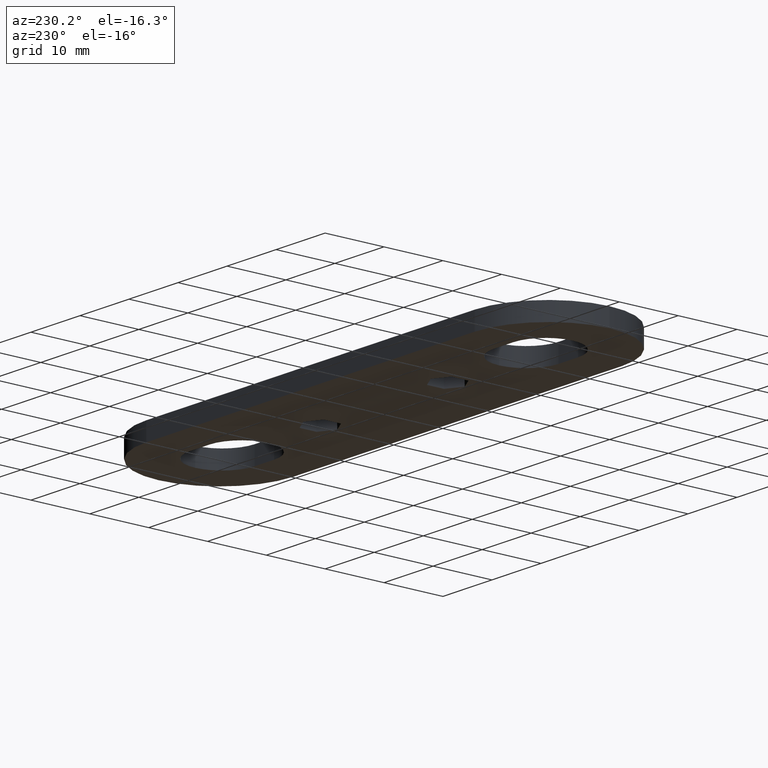
[diagram: clean part render]
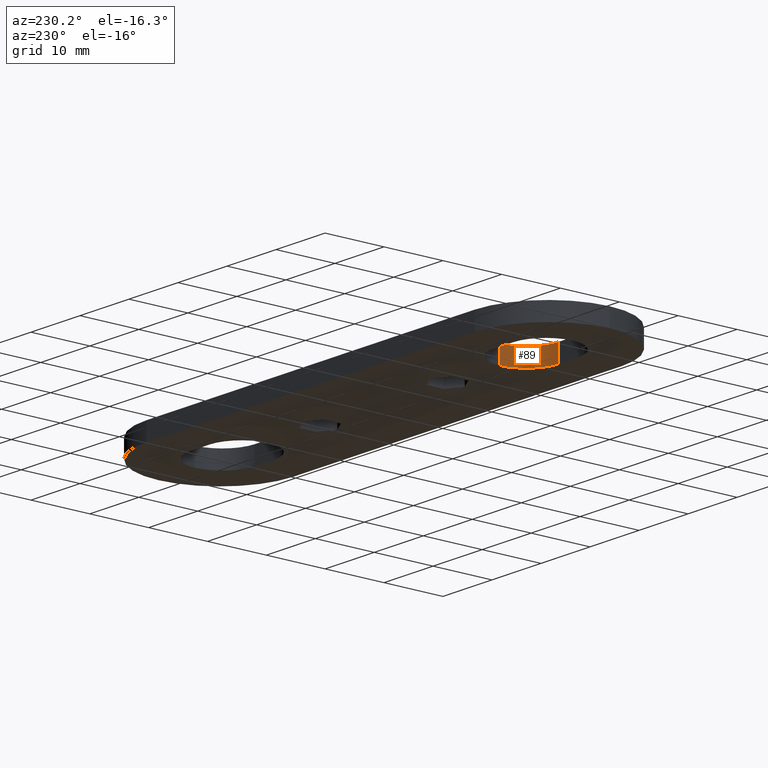
[diagram: same view with one face highlighted and labeled with its STEP entity id]
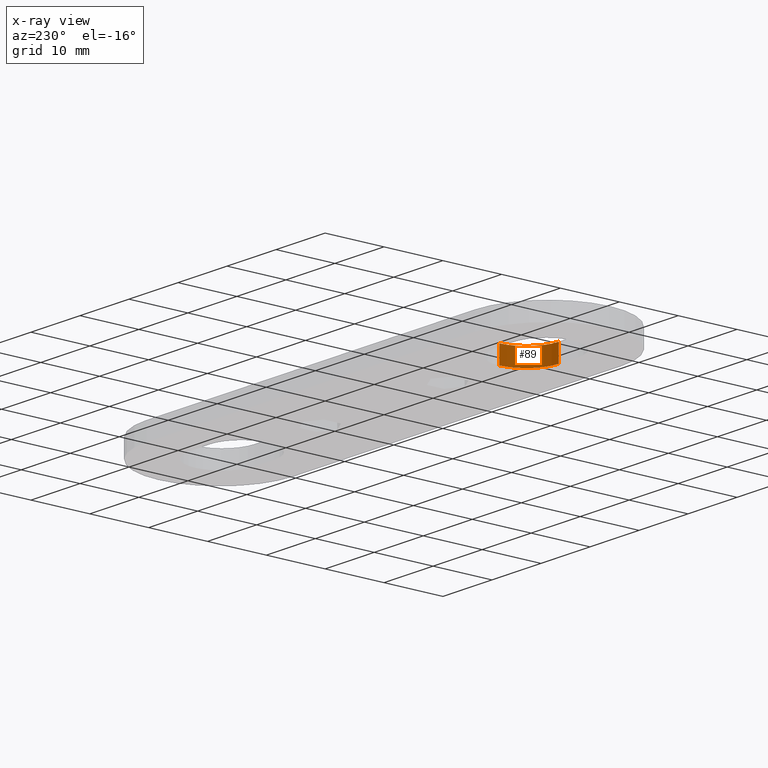
[diagram: x-ray of the same camera — body ghosted, the highlighted face saturated]
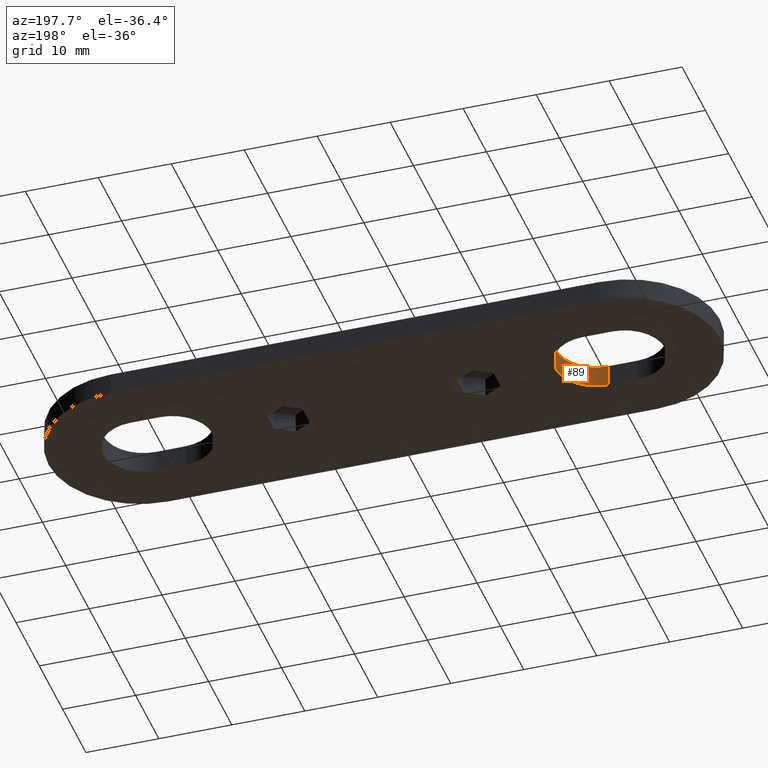
[diagram: same view with one face highlighted and labeled with its STEP entity id]
A machine part, auxiliary view. The second image highlights one B-rep face of the part: STEP entity #89.
The next image is the same camera in x-ray: the body ghosted, the highlighted face saturated — about 0% of this face is hidden behind the body in this view.
A second angle (auxiliary view) of the same face is appended — the face is thin or edge-on in the first view.
In plain terms, the highlighted cylindrical surface (partial cylindrical patch) has radius 5.5 mm, axis along (0, -0, -1).
Its self-contained STEP definition (entity closure, byte-faithful):
#89 = ADVANCED_FACE( '', ( #188 ), #189, .F. );
#188 = FACE_OUTER_BOUND( '', #345, .T. );
#189 = CYLINDRICAL_SURFACE( '', #346, 5.50000000000000 );
#345 = EDGE_LOOP( '', ( #629, #630, #631, #632 ) );
#346 = AXIS2_PLACEMENT_3D( '', #633, #634, #635 );
#629 = ORIENTED_EDGE( '', *, *, #1108, .F. );
#630 = ORIENTED_EDGE( '', *, *, #1125, .T. );
#631 = ORIENTED_EDGE( '', *, *, #1057, .T. );
#632 = ORIENTED_EDGE( '', *, *, #1124, .F. );
#633 = CARTESIAN_POINT( '', ( -29.0000000000000, -1.04083414681702E-014, -1.00001003866534E-005 ) );
#634 = DIRECTION( '', ( 0.000000000000000, -6.12303176911189E-017, -1.00000000000000 ) );
#635 = DIRECTION( '', ( 5.78241158658935E-017, -1.00000000000000, 6.12303176911189E-017 ) );
#1057 = EDGE_CURVE( '', #1263, #1261, #1264, .T. );
#1108 = EDGE_CURVE( '', #1358, #1360, #1361, .T. );
#1124 = EDGE_CURVE( '', #1360, #1261, #1383, .T. );
#1125 = EDGE_CURVE( '', #1358, #1263, #1384, .T. );
#1261 = VERTEX_POINT( '', #1575 );
#1263 = VERTEX_POINT( '', #1577 );
#1264 = CIRCLE( '', #1578, 5.50000000000000 );
#1358 = VERTEX_POINT( '', #1712 );
#1360 = VERTEX_POINT( '', #1715 );
#1361 = CIRCLE( '', #1716, 5.50000000000000 );
#1383 = LINE( '', #1747, #1748 );
#1384 = LINE( '', #1749, #1750 );
#1575 = CARTESIAN_POINT( '', ( -23.5000000000000, -3.28575581518341E-015, 3.00000300009623 ) );
#1577 = CARTESIAN_POINT( '', ( -29.0000000000000, -5.50000000000000, 3.00000300009623 ) );
#1578 = AXIS2_PLACEMENT_3D( '', #1999, #2000, #2001 );
#1712 = CARTESIAN_POINT( '', ( -29.0000000000000, -5.50000000000000, -2.74188088683278E-014 ) );
#1715 = CARTESIAN_POINT( '', ( -23.5000000000000, -3.46146677221322E-015, -2.77555756156289E-014 ) );
#1716 = AXIS2_PLACEMENT_3D( '', #2070, #2071, #2072 );
#1747 = CARTESIAN_POINT( '', ( -23.5000000000000, -3.46944756426294E-015, -1.00001003866534E-005 ) );
#1748 = VECTOR( '', #2100, 1000.00000000000 );
#1749 = CARTESIAN_POINT( '', ( -29.0000000000000, -5.50000000000000, -1.00001003863167E-005 ) );
#1750 = VECTOR( '', #2101, 1000.00000000000 );
#1999 = CARTESIAN_POINT( '', ( -29.0000000000000, -1.02246497190906E-014, 3.00000300009623 ) );
#2000 = DIRECTION( '', ( 0.000000000000000, 6.12303176911189E-017, 1.00000000000000 ) );
#2001 = DIRECTION( '', ( 5.78241158658935E-017, -1.00000000000000, 6.12303176911189E-017 ) );
#2070 = CARTESIAN_POINT( '', ( -29.0000000000000, -1.04083408558608E-014, -2.77555756156289E-014 ) );
#2071 = DIRECTION( '', ( 0.000000000000000, 6.12303176911189E-017, 1.00000000000000 ) );
#2072 = DIRECTION( '', ( 0.000000000000000, -1.00000000000000, 6.12303176911189E-017 ) );
#2100 = DIRECTION( '', ( 0.000000000000000, 6.12303176911189E-017, 1.00000000000000 ) );
#2101 = DIRECTION( '', ( 0.000000000000000, 6.12303176911189E-017, 1.00000000000000 ) );